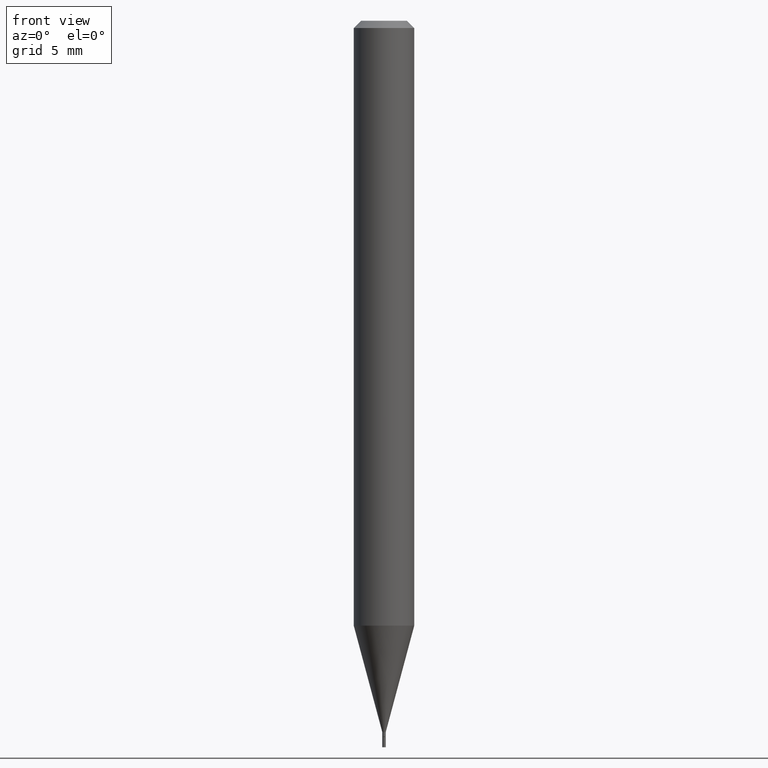
[diagram: clean part render]
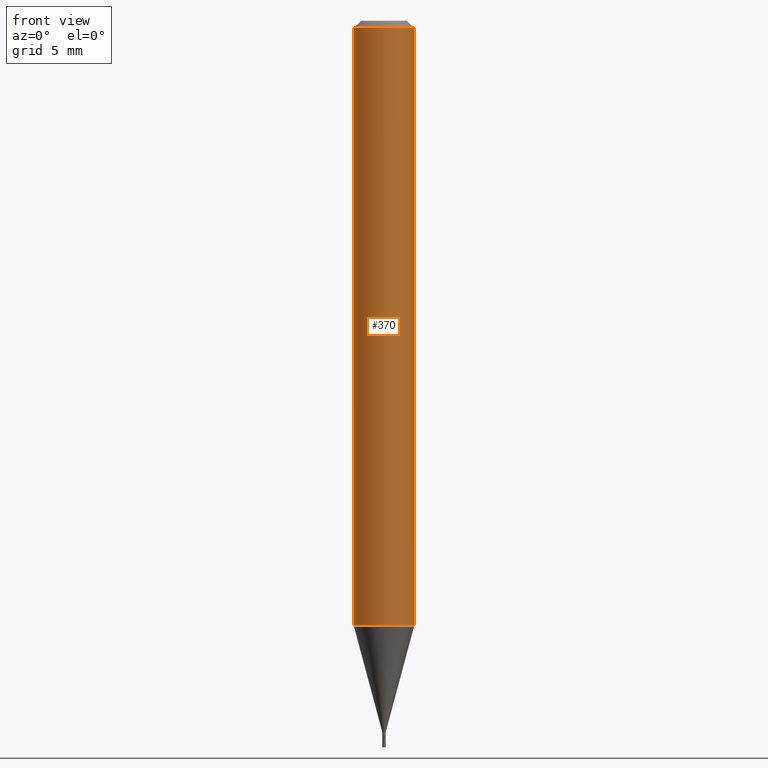
[diagram: same view with one face highlighted and labeled with its STEP entity id]
A machine part, front view. The second image highlights one B-rep face of the part: STEP entity #370.
In plain terms, the highlighted cylindrical surface (edge-blend (fillet) strip) has radius 1.5875 mm, axis along (-0, 0, 1).
Its self-contained STEP definition (entity closure, byte-faithful):
#5 = CIRCLE ( 'NONE', #188, 0.06250000000000000000 ) ;
#23 = DIRECTION ( 'NONE',  ( 1.000000000000000000, -6.982962677686266711E-15, 0.000000000000000000 ) ) ;
#44 = LINE ( 'NONE', #323, #109 ) ;
#47 = DIRECTION ( 'NONE',  ( -2.445468806185136877E-29, 3.491481338843145188E-15, 1.000000000000000000 ) ) ;
#49 = CARTESIAN_POINT ( 'NONE',  ( 0.000000000000000000, 0.000000000000000000, 0.000000000000000000 ) ) ;
#85 = ORIENTED_EDGE ( 'NONE', *, *, #447, .F. ) ;
#90 = CARTESIAN_POINT ( 'NONE',  ( 3.053923460138509831E-29, -4.360193327496349299E-15, -1.248809002353436615 ) ) ;
#95 = ORIENTED_EDGE ( 'NONE', *, *, #222, .F. ) ;
#100 = EDGE_LOOP ( 'NONE', ( #95, #141, #264, #85 ) ) ;
#107 = CARTESIAN_POINT ( 'NONE',  ( -0.06250000000000000000, -1.762193563939435770E-15, -0.01499999999999999944 ) ) ;
#109 = VECTOR ( 'NONE', #47, 39.37007874015748143 ) ;
#115 = AXIS2_PLACEMENT_3D ( 'NONE', #49, #199, #333 ) ;
#124 = DIRECTION ( 'NONE',  ( -2.445468806185136877E-29, 3.491481338843145188E-15, 1.000000000000000000 ) ) ;
#141 = ORIENTED_EDGE ( 'NONE', *, *, #347, .T. ) ;
#146 = CARTESIAN_POINT ( 'NONE',  ( -0.06250000000000001388, -3.916104117646285894E-15, -1.248809002353436615 ) ) ;
#162 = AXIS2_PLACEMENT_3D ( 'NONE', #177, #341, #23 ) ;
#177 = CARTESIAN_POINT ( 'NONE',  ( 3.668203209277705088E-31, -5.237222008264718399E-17, -0.01499999999999999944 ) ) ;
#188 = AXIS2_PLACEMENT_3D ( 'NONE', #90, #442, #335 ) ;
#193 = LINE ( 'NONE', #444, #414 ) ;
#199 = DIRECTION ( 'NONE',  ( -2.445468806185136597E-29, 3.491481338843145583E-15, 1.000000000000000000 ) ) ;
#222 = EDGE_CURVE ( 'NONE', #408, #416, #44, .T. ) ;
#230 = VERTEX_POINT ( 'NONE', #417 ) ;
#264 = ORIENTED_EDGE ( 'NONE', *, *, #322, .T. ) ;
#268 = CARTESIAN_POINT ( 'NONE',  ( 0.06250000000000000000, -4.888073874380388472E-16, -0.01499999999999999944 ) ) ;
#294 = FACE_OUTER_BOUND ( 'NONE', #100, .T. ) ;
#322 = EDGE_CURVE ( 'NONE', #230, #324, #193, .T. ) ;
#323 = CARTESIAN_POINT ( 'NONE',  ( -0.06250000000000000000, 4.440892098500626162E-16, -3.074334431409316114E-30 ) ) ;
#324 = VERTEX_POINT ( 'NONE', #268 ) ;
#333 = DIRECTION ( 'NONE',  ( 1.000000000000000000, -6.982962677686266711E-15, 4.876176775795935793E-29 ) ) ;
#335 = DIRECTION ( 'NONE',  ( 1.000000000000000000, -6.982962677686270655E-15, 0.000000000000000000 ) ) ;
#341 = DIRECTION ( 'NONE',  ( -2.445468806185136597E-29, 3.491481338843145583E-15, 1.000000000000000000 ) ) ;
#347 = EDGE_CURVE ( 'NONE', #408, #230, #5, .T. ) ;
#370 = ADVANCED_FACE ( 'NONE', ( #294 ), #407, .T. ) ;
#371 = CIRCLE ( 'NONE', #162, 0.06250000000000000000 ) ;
#407 = CYLINDRICAL_SURFACE ( 'NONE', #115, 0.06250000000000000000 ) ;
#408 = VERTEX_POINT ( 'NONE', #146 ) ;
#414 = VECTOR ( 'NONE', #124, 39.37007874015748143 ) ;
#416 = VERTEX_POINT ( 'NONE', #107 ) ;
#417 = CARTESIAN_POINT ( 'NONE',  ( 0.06250000000000001388, -4.796628494851741757E-15, -1.248809002353436615 ) ) ;
#442 = DIRECTION ( 'NONE',  ( -2.445468806185136597E-29, 3.491481338843145583E-15, 1.000000000000000000 ) ) ;
#444 = CARTESIAN_POINT ( 'NONE',  ( 0.06250000000000000000, -4.364351673553916694E-16, 3.047610484872459871E-30 ) ) ;
#447 = EDGE_CURVE ( 'NONE', #416, #324, #371, .T. ) ;